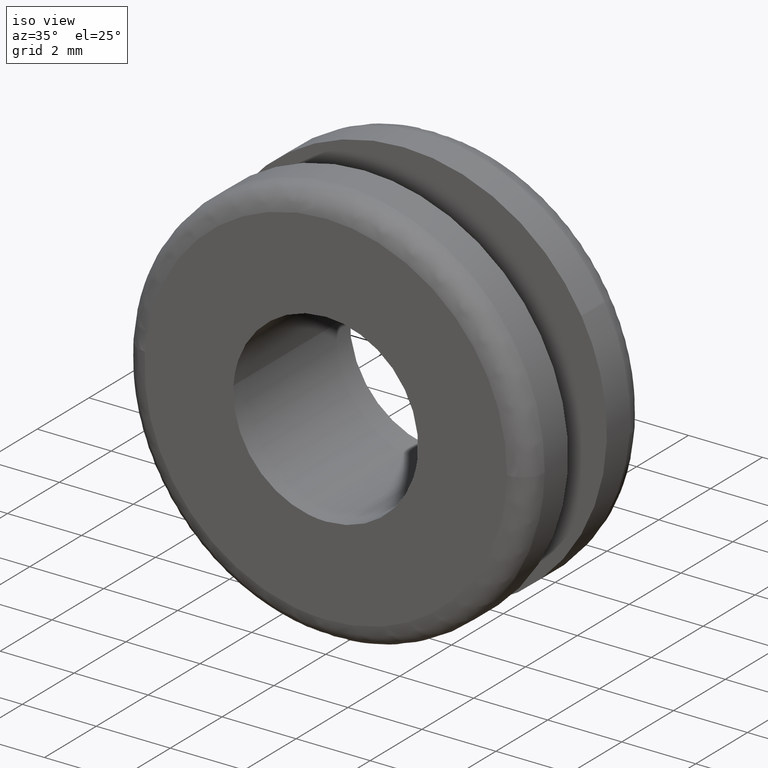
[diagram: clean part render]
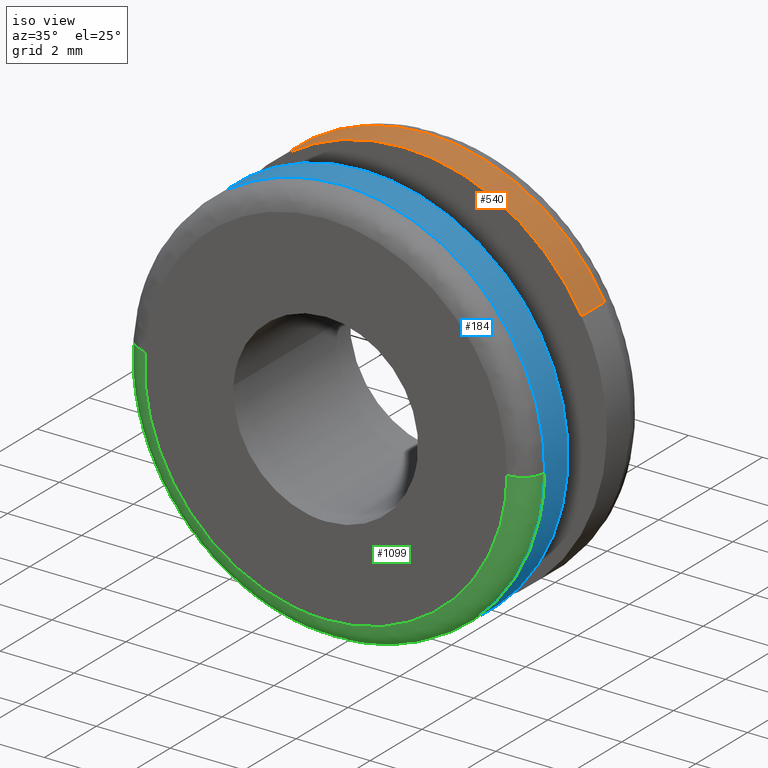
[diagram: same view with three faces highlighted in distinct colors, each labeled with its STEP entity id]
A machine part, iso view with three faces highlighted in distinct colors.
Their STEP definitions:

[orange] entity #540 — the highlighted face is a freeform B-spline surface patch.
#446=CARTESIAN_POINT('',(4.812205350937217,3.922500000028185,2.663208527399086));
#447=CARTESIAN_POINT('',(4.496083300651819,3.922500000028185,3.234415853555515));
#448=CARTESIAN_POINT('',(4.055025352455680,3.922500000028184,3.715746141886131));
#449=CARTESIAN_POINT('',(0.339279210569550,3.922500000028184,7.770771494341811));
#450=CARTESIAN_POINT('',(-3.715746141886131,3.922500000028184,4.055025352455680));
#451=CARTESIAN_POINT('',(4.812205350937217,2.976937499999295,2.663208527399086));
#452=CARTESIAN_POINT('',(4.496083300651819,2.976937499999295,3.234415853555515));
#453=CARTESIAN_POINT('',(4.055025352455680,2.976937499999295,3.715746141886131));
#454=CARTESIAN_POINT('',(0.339279210569550,2.976937499999294,7.770771494341811));
#455=CARTESIAN_POINT('',(-3.715746141886131,2.976937499999295,4.055025352455680));
#463=(BOUNDED_SURFACE()B_SPLINE_SURFACE(2,1,((#446,#451),(#447,#452),(#448,#453),(#449,#454),(#450,#455)),.UNSPECIFIED.,.F.,.F.,.U.)B_SPLINE_SURFACE_WITH_KNOTS((3,2,3),(2,2),(0.0,1.458031739553296,10.570730111761380),(0.0,1.0),.UNSPECIFIED.)GEOMETRIC_REPRESENTATION_ITEM()RATIONAL_B_SPLINE_SURFACE(((0.921270302782944,0.921270302782944),(0.953137084989848,0.953137084989848),(1.0,1.0),(0.707106781186548,0.707106781186548),(1.0,1.0)))REPRESENTATION_ITEM('')SURFACE());
#464=CARTESIAN_POINT('',(4.812205843439302,3.900000000000018,2.663207637486718));
#465=VERTEX_POINT('',#464);
#466=CARTESIAN_POINT('',(0.0,3.900000000000000,5.500000000000000));
#467=VERTEX_POINT('',#466);
#468=CARTESIAN_POINT('',(4.812205843439302,3.900000000000018,2.663207637486718));
#469=CARTESIAN_POINT('',(3.242246591569628,3.900000000000000,5.500000000000001));
#470=CARTESIAN_POINT('',(0.0,3.900000000000000,5.500000000000000));
#478=(BOUNDED_CURVE()B_SPLINE_CURVE(2,(#468,#469,#470),.UNSPECIFIED.,.F.,.U.)B_SPLINE_CURVE_WITH_KNOTS((3,3),(0.332484260513294,0.500000000000000),.UNSPECIFIED.)CURVE()GEOMETRIC_REPRESENTATION_ITEM()RATIONAL_B_SPLINE_CURVE((0.870495160132448,0.803743103439292,1.0))REPRESENTATION_ITEM(''));
#479=EDGE_CURVE('',#465,#467,#478,.T.);
#480=ORIENTED_EDGE('',*,*,#479,.T.);
#481=CARTESIAN_POINT('',(-3.715745918085256,3.900000000007310,4.055025557530997));
#482=VERTEX_POINT('',#481);
#483=CARTESIAN_POINT('',(0.0,3.900000000000000,5.500000000000000));
#484=CARTESIAN_POINT('',(-2.138832675736071,3.900000000000000,5.500000000000000));
#485=CARTESIAN_POINT('',(-3.715745918085255,3.900000000007310,4.055025557530997));
#493=(BOUNDED_CURVE()B_SPLINE_CURVE(2,(#483,#484,#485),.UNSPECIFIED.,.F.,.U.)B_SPLINE_CURVE_WITH_KNOTS((3,3),(0.500000000000000,0.618415192420787),.UNSPECIFIED.)CURVE()GEOMETRIC_REPRESENTATION_ITEM()RATIONAL_B_SPLINE_CURVE((1.0,0.861267972541846,0.853959782894757))REPRESENTATION_ITEM(''));
#494=EDGE_CURVE('',#467,#482,#493,.T.);
#495=ORIENTED_EDGE('',*,*,#494,.T.);
#496=CARTESIAN_POINT('',(-3.715745924040497,3.0,4.055025552074405));
#497=VERTEX_POINT('',#496);
#498=CARTESIAN_POINT('',(-3.715745918085256,3.900000000007310,4.055025557530997));
#499=CARTESIAN_POINT('',(-3.715745924040497,3.0,4.055025552074405));
#500=QUASI_UNIFORM_CURVE('',1,(#498,#499),.UNSPECIFIED.,.F.,.U.);
#501=EDGE_CURVE('',#482,#497,#500,.T.);
#502=ORIENTED_EDGE('',*,*,#501,.T.);
#503=CARTESIAN_POINT('',(0.0,3.0,5.500000000000000));
#504=VERTEX_POINT('',#503);
#505=CARTESIAN_POINT('',(0.0,3.0,5.500000000000000));
#506=CARTESIAN_POINT('',(-2.138832685034934,3.000000000000000,5.500000000000000));
#507=CARTESIAN_POINT('',(-3.715745924040497,3.000000000000000,4.055025552074405));
#515=(BOUNDED_CURVE()B_SPLINE_CURVE(2,(#505,#506,#507),.UNSPECIFIED.,.F.,.U.)B_SPLINE_CURVE_WITH_KNOTS((3,3),(0.500000000000000,0.618415192864190),.UNSPECIFIED.)CURVE()GEOMETRIC_REPRESENTATION_ITEM()RATIONAL_B_SPLINE_CURVE((1.0,0.861267972022367,0.853959782840026))REPRESENTATION_ITEM(''));
#516=EDGE_CURVE('',#504,#497,#515,.T.);
#517=ORIENTED_EDGE('',*,*,#516,.F.);
#518=CARTESIAN_POINT('',(4.812205804631674,3.0,2.663207707609066));
#519=VERTEX_POINT('',#518);
#520=CARTESIAN_POINT('',(4.812205804631675,3.000000000000000,2.663207707609067));
#521=CARTESIAN_POINT('',(3.242247168853135,3.000000000000000,5.499999999999999));
#522=CARTESIAN_POINT('',(0.0,3.0,5.500000000000000));
#530=(BOUNDED_CURVE()B_SPLINE_CURVE(2,(#520,#521,#522),.UNSPECIFIED.,.F.,.U.)B_SPLINE_CURVE_WITH_KNOTS((3,3),(0.332484236540648,0.500000000000000),.UNSPECIFIED.)CURVE()GEOMETRIC_REPRESENTATION_ITEM()RATIONAL_B_SPLINE_CURVE((0.870495179237803,0.803743075353590,1.0))REPRESENTATION_ITEM(''));
#531=EDGE_CURVE('',#519,#504,#530,.T.);
#532=ORIENTED_EDGE('',*,*,#531,.F.);
#533=CARTESIAN_POINT('',(4.812205843439302,3.900000000000018,2.663207637486718));
#534=CARTESIAN_POINT('',(4.812205804631674,3.0,2.663207707609066));
#535=QUASI_UNIFORM_CURVE('',1,(#533,#534),.UNSPECIFIED.,.F.,.U.);
#536=EDGE_CURVE('',#465,#519,#535,.T.);
#537=ORIENTED_EDGE('',*,*,#536,.F.);
#538=EDGE_LOOP('',(#480,#495,#502,#517,#532,#537));
#539=FACE_OUTER_BOUND('',#538,.T.);
#540=ADVANCED_FACE('',(#539),#463,.T.);

[blue] entity #184 — the highlighted face is a freeform B-spline surface patch.
#44=CARTESIAN_POINT('',(2.985008738409040,1.522500000000269,-4.619493785213013));
#45=CARTESIAN_POINT('',(3.252596745929994,1.522500000000269,-4.446584679176262));
#46=CARTESIAN_POINT('',(3.498430211527701,1.522500000000269,-4.243935208632458));
#47=CARTESIAN_POINT('',(7.742365420160159,1.522500000000269,-0.745504997104758));
#48=CARTESIAN_POINT('',(4.243935208632458,1.522500000000269,3.498430211527701));
#49=CARTESIAN_POINT('',(0.745504997104758,1.522500000000269,7.742365420160159));
#50=CARTESIAN_POINT('',(-3.498430211527701,1.522500000000269,4.243935208632458));
#51=CARTESIAN_POINT('',(-7.742365420160159,1.522500000000269,0.745504997104758));
#52=CARTESIAN_POINT('',(-4.243935208632458,1.522500000000269,-3.498430211527701));
#53=CARTESIAN_POINT('',(2.985008738409040,0.576937499988974,-4.619493785213013));
#54=CARTESIAN_POINT('',(3.252596745929994,0.576937499988974,-4.446584679176262));
#55=CARTESIAN_POINT('',(3.498430211527701,0.576937499988974,-4.243935208632458));
#56=CARTESIAN_POINT('',(7.742365420160159,0.576937499988974,-0.745504997104758));
#57=CARTESIAN_POINT('',(4.243935208632458,0.576937499988974,3.498430211527701));
#58=CARTESIAN_POINT('',(0.745504997104758,0.576937499988974,7.742365420160159));
#59=CARTESIAN_POINT('',(-3.498430211527701,0.576937499988974,4.243935208632458));
#60=CARTESIAN_POINT('',(-7.742365420160159,0.576937499988974,0.745504997104758));
#61=CARTESIAN_POINT('',(-4.243935208632458,0.576937499988974,-3.498430211527701));
#69=(BOUNDED_SURFACE()B_SPLINE_SURFACE(2,1,((#44,#53),(#45,#54),(#46,#55),(#47,#56),(#48,#57),(#49,#58),(#50,#59),(#51,#60),(#52,#61)),.UNSPECIFIED.,.F.,.F.,.U.)B_SPLINE_SURFACE_WITH_KNOTS((3,2,2,2,3),(2,2),(0.0,0.729015869776647,9.841714241984734,18.954412614192830,28.067110986400909),(0.0,1.0),.UNSPECIFIED.)GEOMETRIC_REPRESENTATION_ITEM()RATIONAL_B_SPLINE_SURFACE(((0.956886118190660,0.956886118190660),(0.976568542494924,0.976568542494924),(1.0,1.0),(0.707106781186548,0.707106781186548),(1.0,1.0),(0.707106781186548,0.707106781186548),(1.0,1.0),(0.707106781186548,0.707106781186548),(1.0,1.0)))REPRESENTATION_ITEM('')SURFACE());
#70=CARTESIAN_POINT('',(2.985007899875340,0.599999999998220,-4.619494327053410));
#71=VERTEX_POINT('',#70);
#72=CARTESIAN_POINT('',(5.499565743120951,0.599999999989269,-0.069113219361360));
#73=VERTEX_POINT('',#72);
#74=CARTESIAN_POINT('',(2.985007899875340,0.599999999998220,-4.619494327053409));
#75=CARTESIAN_POINT('',(5.462499466198922,0.599999999995085,-3.018598551696828));
#76=CARTESIAN_POINT('',(5.499565743120951,0.599999999989269,-0.069113219361360));
#84=(BOUNDED_CURVE()B_SPLINE_CURVE(2,(#74,#75,#76),.UNSPECIFIED.,.F.,.U.)B_SPLINE_CURVE_WITH_KNOTS((3,3),(0.092934687548090,0.247784295921542),.UNSPECIFIED.)CURVE()GEOMETRIC_REPRESENTATION_ITEM()RATIONAL_B_SPLINE_CURVE((0.863190132936235,0.816652436475567,0.994854295643583))REPRESENTATION_ITEM(''));
#85=EDGE_CURVE('',#71,#73,#84,.T.);
#86=ORIENTED_EDGE('',*,*,#85,.F.);
#87=CARTESIAN_POINT('',(2.985007905691947,1.500000000000000,-4.619494323295093));
#88=VERTEX_POINT('',#87);
#89=CARTESIAN_POINT('',(2.985007905691947,1.500000000000000,-4.619494323295093));
#90=CARTESIAN_POINT('',(2.985007899875340,0.599999999998220,-4.619494327053410));
#91=QUASI_UNIFORM_CURVE('',1,(#89,#90),.UNSPECIFIED.,.F.,.U.);
#92=EDGE_CURVE('',#88,#71,#91,.T.);
#93=ORIENTED_EDGE('',*,*,#92,.F.);
#94=CARTESIAN_POINT('',(0.0,1.500000000000000,5.500000000000000));
#95=VERTEX_POINT('',#94);
#96=CARTESIAN_POINT('',(2.985007905691948,1.500000000000000,-4.619494323295093));
#97=CARTESIAN_POINT('',(5.500000000000000,1.500000000000001,-2.994366594990551));
#98=CARTESIAN_POINT('',(5.500000000000000,1.500000000000000,-1.928755E-016));
#99=CARTESIAN_POINT('',(5.500000000000001,1.500000000000000,5.500000000000001));
#100=CARTESIAN_POINT('',(0.0,1.500000000000000,5.500000000000000));
#108=(BOUNDED_CURVE()B_SPLINE_CURVE(2,(#96,#97,#98,#99,#100),.UNSPECIFIED.,.F.,.U.)B_SPLINE_CURVE_WITH_KNOTS((3,2,3),(0.092934687932361,0.250000000000000,0.500000000000000),.UNSPECIFIED.)CURVE()GEOMETRIC_REPRESENTATION_ITEM()RATIONAL_B_SPLINE_CURVE((0.863190132705262,0.815986540738279,1.0,0.707106781186548,1.0))REPRESENTATION_ITEM(''));
#109=EDGE_CURVE('',#88,#95,#108,.T.);
#110=ORIENTED_EDGE('',*,*,#109,.T.);
#111=CARTESIAN_POINT('',(-4.243935634971063,1.500000000000000,-3.498429694337490));
#112=VERTEX_POINT('',#111);
#113=CARTESIAN_POINT('',(0.0,1.500000000000000,5.500000000000000));
#114=CARTESIAN_POINT('',(-5.500000000000001,1.500000000000000,5.500000000000001));
#115=CARTESIAN_POINT('',(-5.500000000000000,1.500000000000000,-1.928755E-016));
#116=CARTESIAN_POINT('',(-5.500000000000000,1.500000000000000,-1.974701019510161));
#117=CARTESIAN_POINT('',(-4.243935634971063,1.500000000000000,-3.498429694337489));
#125=(BOUNDED_CURVE()B_SPLINE_CURVE(2,(#113,#114,#115,#116,#117),.UNSPECIFIED.,.F.,.U.)B_SPLINE_CURVE_WITH_KNOTS((3,2,3),(0.500000000000000,0.750000000000000,0.860504588998465),.UNSPECIFIED.)CURVE()GEOMETRIC_REPRESENTATION_ITEM()RATIONAL_B_SPLINE_CURVE((1.0,0.707106781186548,1.0,0.870535820938328,0.855522729054526))REPRESENTATION_ITEM(''));
#126=EDGE_CURVE('',#95,#112,#125,.T.);
#127=ORIENTED_EDGE('',*,*,#126,.T.);
#128=CARTESIAN_POINT('',(-4.243935646368156,0.599999999999966,-3.498429680511704));
#129=VERTEX_POINT('',#128);
#130=CARTESIAN_POINT('',(-4.243935634971063,1.500000000000000,-3.498429694337490));
#131=CARTESIAN_POINT('',(-4.243935646368156,0.599999999999966,-3.498429680511704));
#132=QUASI_UNIFORM_CURVE('',1,(#130,#131),.UNSPECIFIED.,.F.,.U.);
#133=EDGE_CURVE('',#112,#129,#132,.T.);
#134=ORIENTED_EDGE('',*,*,#133,.T.);
#135=CARTESIAN_POINT('',(-5.486611206122207,0.599999999989249,0.383532883667368));
#136=VERTEX_POINT('',#135);
#137=CARTESIAN_POINT('',(-5.486611206122207,0.599999999989249,0.383532883667368));
#138=CARTESIAN_POINT('',(-5.500000000000000,0.599999999999979,0.192000137313359));
#139=CARTESIAN_POINT('',(-5.500000000000000,0.599999999999979,-1.928755E-016));
#140=CARTESIAN_POINT('',(-5.500000000000000,0.599999999999979,-1.974700999282679));
#141=CARTESIAN_POINT('',(-4.243935646368156,0.599999999999966,-3.498429680511704));
#149=(BOUNDED_CURVE()B_SPLINE_CURVE(2,(#137,#138,#139,#140,#141),.UNSPECIFIED.,.F.,.U.)B_SPLINE_CURVE_WITH_KNOTS((3,2,3),(0.737833686534982,0.750000000000000,0.860504588013077),.UNSPECIFIED.)CURVE()GEOMETRIC_REPRESENTATION_ITEM()RATIONAL_B_SPLINE_CURVE((0.972879876386744,0.985746277152549,1.0,0.870535822092782,0.855522729322274))REPRESENTATION_ITEM(''));
#150=EDGE_CURVE('',#136,#129,#149,.T.);
#151=ORIENTED_EDGE('',*,*,#150,.F.);
#152=CARTESIAN_POINT('',(0.0,0.599999999999979,5.500000000000000));
#153=VERTEX_POINT('',#152);
#154=CARTESIAN_POINT('',(0.0,0.599999999999979,5.500000000000000));
#155=CARTESIAN_POINT('',(-5.128952659961872,0.599999999999979,5.500000000000001));
#156=CARTESIAN_POINT('',(-5.486611206122207,0.599999999989249,0.383532883667368));
#164=(BOUNDED_CURVE()B_SPLINE_CURVE(2,(#154,#155,#156),.UNSPECIFIED.,.F.,.U.)B_SPLINE_CURVE_WITH_KNOTS((3,3),(0.500000000000000,0.737833686534983),.UNSPECIFIED.)CURVE()GEOMETRIC_REPRESENTATION_ITEM()RATIONAL_B_SPLINE_CURVE((1.0,0.721360504033997,0.972879876386746))REPRESENTATION_ITEM(''));
#165=EDGE_CURVE('',#153,#136,#164,.T.);
#166=ORIENTED_EDGE('',*,*,#165,.F.);
#167=CARTESIAN_POINT('',(5.499565743120951,0.599999999989269,-0.069113219361360));
#168=CARTESIAN_POINT('',(5.500000000000001,0.599999999999979,-0.034557973958315));
#169=CARTESIAN_POINT('',(5.500000000000000,0.599999999999979,-1.928755E-016));
#170=CARTESIAN_POINT('',(5.500000000000001,0.599999999999979,5.500000000000001));
#171=CARTESIAN_POINT('',(0.0,0.599999999999979,5.500000000000000));
#179=(BOUNDED_CURVE()B_SPLINE_CURVE(2,(#167,#168,#169,#170,#171),.UNSPECIFIED.,.F.,.U.)B_SPLINE_CURVE_WITH_KNOTS((3,2,3),(0.247784295921541,0.250000000000000,0.500000000000000),.UNSPECIFIED.)CURVE()GEOMETRIC_REPRESENTATION_ITEM()RATIONAL_B_SPLINE_CURVE((0.994854295643582,0.997404141202089,1.0,0.707106781186548,1.0))REPRESENTATION_ITEM(''));
#180=EDGE_CURVE('',#73,#153,#179,.T.);
#181=ORIENTED_EDGE('',*,*,#180,.F.);
#182=EDGE_LOOP('',(#86,#93,#110,#127,#134,#151,#166,#181));
#183=FACE_OUTER_BOUND('',#182,.T.);
#184=ADVANCED_FACE('',(#183),#69,.T.);

[green] entity #1099 — the highlighted face is a freeform B-spline surface patch.
#70=CARTESIAN_POINT('',(2.985007899875340,0.599999999998220,-4.619494327053410));
#71=VERTEX_POINT('',#70);
#72=CARTESIAN_POINT('',(5.499565743120951,0.599999999989269,-0.069113219361360));
#73=VERTEX_POINT('',#72);
#74=CARTESIAN_POINT('',(2.985007899875340,0.599999999998220,-4.619494327053409));
#75=CARTESIAN_POINT('',(5.462499466198922,0.599999999995085,-3.018598551696828));
#76=CARTESIAN_POINT('',(5.499565743120951,0.599999999989269,-0.069113219361360));
#84=(BOUNDED_CURVE()B_SPLINE_CURVE(2,(#74,#75,#76),.UNSPECIFIED.,.F.,.U.)B_SPLINE_CURVE_WITH_KNOTS((3,3),(0.092934687548090,0.247784295921542),.UNSPECIFIED.)CURVE()GEOMETRIC_REPRESENTATION_ITEM()RATIONAL_B_SPLINE_CURVE((0.863190132936235,0.816652436475567,0.994854295643583))REPRESENTATION_ITEM(''));
#85=EDGE_CURVE('',#71,#73,#84,.T.);
#128=CARTESIAN_POINT('',(-4.243935646368156,0.599999999999966,-3.498429680511704));
#129=VERTEX_POINT('',#128);
#135=CARTESIAN_POINT('',(-5.486611206122207,0.599999999989249,0.383532883667368));
#136=VERTEX_POINT('',#135);
#137=CARTESIAN_POINT('',(-5.486611206122207,0.599999999989249,0.383532883667368));
#138=CARTESIAN_POINT('',(-5.500000000000000,0.599999999999979,0.192000137313359));
#139=CARTESIAN_POINT('',(-5.500000000000000,0.599999999999979,-1.928755E-016));
#140=CARTESIAN_POINT('',(-5.500000000000000,0.599999999999979,-1.974700999282679));
#141=CARTESIAN_POINT('',(-4.243935646368156,0.599999999999966,-3.498429680511704));
#149=(BOUNDED_CURVE()B_SPLINE_CURVE(2,(#137,#138,#139,#140,#141),.UNSPECIFIED.,.F.,.U.)B_SPLINE_CURVE_WITH_KNOTS((3,2,3),(0.737833686534982,0.750000000000000,0.860504588013077),.UNSPECIFIED.)CURVE()GEOMETRIC_REPRESENTATION_ITEM()RATIONAL_B_SPLINE_CURVE((0.972879876386744,0.985746277152549,1.0,0.870535822092782,0.855522729322274))REPRESENTATION_ITEM(''));
#150=EDGE_CURVE('',#136,#129,#149,.T.);
#199=CARTESIAN_POINT('',(0.0,0.599999999999979,-5.500000000000000));
#200=VERTEX_POINT('',#199);
#201=CARTESIAN_POINT('',(0.0,0.599999999999979,-5.500000000000000));
#202=CARTESIAN_POINT('',(1.622367425457560,0.599999999999979,-5.500000000000000));
#203=CARTESIAN_POINT('',(2.985007899875340,0.599999999998220,-4.619494327053409));
#211=(BOUNDED_CURVE()B_SPLINE_CURVE(2,(#201,#202,#203),.UNSPECIFIED.,.F.,.U.)B_SPLINE_CURVE_WITH_KNOTS((3,3),(0.0,0.092934687548090),.UNSPECIFIED.)CURVE()GEOMETRIC_REPRESENTATION_ITEM()RATIONAL_B_SPLINE_CURVE((1.0,0.891120240898469,0.863190132936235))REPRESENTATION_ITEM(''));
#212=EDGE_CURVE('',#200,#71,#211,.T.);
#214=CARTESIAN_POINT('',(-4.243935646368156,0.599999999999966,-3.498429680511704));
#215=CARTESIAN_POINT('',(-2.593969244496337,0.599999999999979,-5.500000000000001));
#216=CARTESIAN_POINT('',(0.0,0.599999999999979,-5.500000000000000));
#224=(BOUNDED_CURVE()B_SPLINE_CURVE(2,(#214,#215,#216),.UNSPECIFIED.,.F.,.U.)B_SPLINE_CURVE_WITH_KNOTS((3,3),(0.860504588013076,1.0),.UNSPECIFIED.)CURVE()GEOMETRIC_REPRESENTATION_ITEM()RATIONAL_B_SPLINE_CURVE((0.855522729322274,0.836570959093765,1.0))REPRESENTATION_ITEM(''));
#225=EDGE_CURVE('',#129,#200,#224,.T.);
#1004=CARTESIAN_POINT('',(-5.485162376515615,0.641722346460023,0.383431301319330));
#1005=CARTESIAN_POINT('',(-5.496136005036806,0.641722346460023,0.226448462174004));
#1006=CARTESIAN_POINT('',(-5.498113471445105,0.641722346460023,0.069094968613638));
#1007=CARTESIAN_POINT('',(-5.567208440058743,0.641722346460023,-5.429018502831468));
#1008=CARTESIAN_POINT('',(-0.069094968613638,0.641722346460023,-5.498113471445105));
#1009=CARTESIAN_POINT('',(5.429018502831468,0.641722346460023,-5.567208440058743));
#1010=CARTESIAN_POINT('',(5.498113471445105,0.641722346460023,-0.069094968613638));
#1011=CARTESIAN_POINT('',(-5.533020374481289,-0.046522561762106,0.386776736363711));
#1012=CARTESIAN_POINT('',(-5.544089747823765,-0.046522561762106,0.228424223199503));
#1013=CARTESIAN_POINT('',(-5.546084467610696,-0.046522561762106,0.069697821663441));
#1014=CARTESIAN_POINT('',(-5.615782289274139,-0.046522561762106,-5.476386645947255));
#1015=CARTESIAN_POINT('',(-0.069697821663441,-0.046522561762106,-5.546084467610696));
#1016=CARTESIAN_POINT('',(5.476386645947253,-0.046522561762106,-5.615782289274139));
#1017=CARTESIAN_POINT('',(5.546084467610696,-0.046522561762106,-0.069697821663442));
#1018=CARTESIAN_POINT('',(-4.846450888339011,0.001452396937526,0.338783219773432));
#1019=CARTESIAN_POINT('',(-4.856146709181534,0.001452396937526,0.200080011371215));
#1020=CARTESIAN_POINT('',(-4.857893912486251,0.001452396937526,0.061049308850186));
#1021=CARTESIAN_POINT('',(-4.918943221336436,0.001452396937526,-4.796844603636064));
#1022=CARTESIAN_POINT('',(-0.061049308850186,0.001452396937526,-4.857893912486251));
#1023=CARTESIAN_POINT('',(4.796844603636063,0.001452396937526,-4.918943221336436));
#1024=CARTESIAN_POINT('',(4.857893912486251,0.001452396937526,-0.061049308850186));
#1032=(BOUNDED_SURFACE()B_SPLINE_SURFACE(2,2,((#1004,#1011,#1018),(#1005,#1012,#1019),(#1006,#1013,#1020),(#1007,#1014,#1021),(#1008,#1015,#1022),(#1009,#1016,#1023),(#1010,#1017,#1024)),.UNSPECIFIED.,.F.,.F.,.U.)B_SPLINE_SURFACE_WITH_KNOTS((3,2,2,3),(3,3),(0.0,0.364411331658415,9.474703311370265,18.584995291082109),(0.0,1.093424726906878),.UNSPECIFIED.)GEOMETRIC_REPRESENTATION_ITEM()RATIONAL_B_SPLINE_SURFACE(((0.889999354793118,0.584039659995545,0.889999457685902),(0.899812926421808,0.590479569200529,0.899813030449139),(0.910479851220577,0.597479469929805,0.910479956481111),(0.643806476931789,0.422481784807109,0.643806551362227),(0.910479851220577,0.597479469929805,0.910479956481111),(0.643806476931789,0.422481784807109,0.643806551362227),(0.910479851220577,0.597479469929805,0.910479956481111)))REPRESENTATION_ITEM('')SURFACE());
#1033=ORIENTED_EDGE('',*,*,#150,.T.);
#1034=ORIENTED_EDGE('',*,*,#225,.T.);
#1035=ORIENTED_EDGE('',*,*,#212,.T.);
#1036=ORIENTED_EDGE('',*,*,#85,.T.);
#1037=CARTESIAN_POINT('',(4.899613116877163,-1.087399E-014,-0.061573595449736));
#1038=VERTEX_POINT('',#1037);
#1039=CARTESIAN_POINT('',(5.499565743120951,0.599999999989269,-0.069113219361360));
#1040=CARTESIAN_POINT('',(5.499565743099569,5.574002E-010,-0.069113219358170));
#1041=CARTESIAN_POINT('',(4.899613116877163,-1.087399E-014,-0.061573595449736));
#1049=(BOUNDED_CURVE()B_SPLINE_CURVE(2,(#1039,#1040,#1041),.UNSPECIFIED.,.F.,.U.)B_SPLINE_CURVE_WITH_KNOTS((3,3),(-1.725134643245204,-0.274865357670907),.UNSPECIFIED.)CURVE()GEOMETRIC_REPRESENTATION_ITEM()RATIONAL_B_SPLINE_CURVE((0.883342149639997,0.624617224304075,0.883342149313133))REPRESENTATION_ITEM(''));
#1050=EDGE_CURVE('',#73,#1038,#1049,.T.);
#1051=ORIENTED_EDGE('',*,*,#1050,.T.);
#1052=CARTESIAN_POINT('',(0.0,-9.000857E-016,-4.900000000000000));
#1053=VERTEX_POINT('',#1052);
#1054=CARTESIAN_POINT('',(0.0,-9.000857E-016,-4.900000000000000));
#1055=CARTESIAN_POINT('',(4.838808456510669,-9.000857E-016,-4.900000000000000));
#1056=CARTESIAN_POINT('',(4.899613116877163,-1.087399E-014,-0.061573595449736));
#1064=(BOUNDED_CURVE()B_SPLINE_CURVE(2,(#1054,#1055,#1056),.UNSPECIFIED.,.F.,.U.)B_SPLINE_CURVE_WITH_KNOTS((3,3),(0.0,0.247784295920450),.UNSPECIFIED.)CURVE()GEOMETRIC_REPRESENTATION_ITEM()RATIONAL_B_SPLINE_CURVE((1.0,0.709702639985737,0.994854295641070))REPRESENTATION_ITEM(''));
#1065=EDGE_CURVE('',#1053,#1038,#1064,.T.);
#1066=ORIENTED_EDGE('',*,*,#1065,.F.);
#1067=CARTESIAN_POINT('',(-4.888071801987687,-1.090493E-014,0.341692932740065));
#1068=VERTEX_POINT('',#1067);
#1069=CARTESIAN_POINT('',(-4.888071801987687,-1.090493E-014,0.341692932740065));
#1070=CARTESIAN_POINT('',(-4.900000000000000,-9.000857E-016,0.171054667794621));
#1071=CARTESIAN_POINT('',(-4.900000000000000,-9.000857E-016,-1.928755E-016));
#1072=CARTESIAN_POINT('',(-4.899999999999999,-9.000857E-016,-4.899999999999999));
#1073=CARTESIAN_POINT('',(0.0,-9.000857E-016,-4.900000000000000));
#1081=(BOUNDED_CURVE()B_SPLINE_CURVE(2,(#1069,#1070,#1071,#1072,#1073),.UNSPECIFIED.,.F.,.U.)B_SPLINE_CURVE_WITH_KNOTS((3,2,3),(0.737833686534536,0.750000000000000,1.0),.UNSPECIFIED.)CURVE()GEOMETRIC_REPRESENTATION_ITEM()RATIONAL_B_SPLINE_CURVE((0.972879876385801,0.985746277152027,1.0,0.707106781186547,1.0))REPRESENTATION_ITEM(''));
#1082=EDGE_CURVE('',#1068,#1053,#1081,.T.);
#1083=ORIENTED_EDGE('',*,*,#1082,.F.);
#1084=CARTESIAN_POINT('',(-5.486611206122207,0.599999999989249,0.383532883667368));
#1085=CARTESIAN_POINT('',(-5.486611206100972,3.411350E-010,0.383532883663435));
#1086=CARTESIAN_POINT('',(-4.888071801987687,-1.090493E-014,0.341692932740065));
#1094=(BOUNDED_CURVE()B_SPLINE_CURVE(2,(#1084,#1085,#1086),.UNSPECIFIED.,.F.,.U.)B_SPLINE_CURVE_WITH_KNOTS((3,3),(-1.725134643245138,-0.274865357301275),.UNSPECIFIED.)CURVE()GEOMETRIC_REPRESENTATION_ITEM()RATIONAL_B_SPLINE_CURVE((0.863472075359911,0.610566959969338,0.863472075169339))REPRESENTATION_ITEM(''));
#1095=EDGE_CURVE('',#136,#1068,#1094,.T.);
#1096=ORIENTED_EDGE('',*,*,#1095,.F.);
#1097=EDGE_LOOP('',(#1033,#1034,#1035,#1036,#1051,#1066,#1083,#1096));
#1098=FACE_OUTER_BOUND('',#1097,.T.);
#1099=ADVANCED_FACE('',(#1098),#1032,.T.);